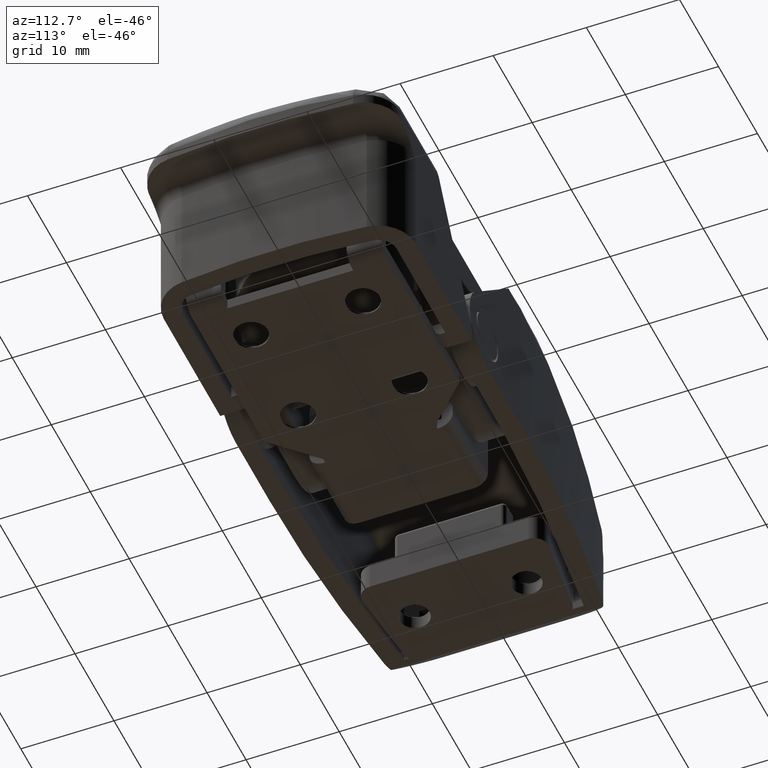
[diagram: clean part render]
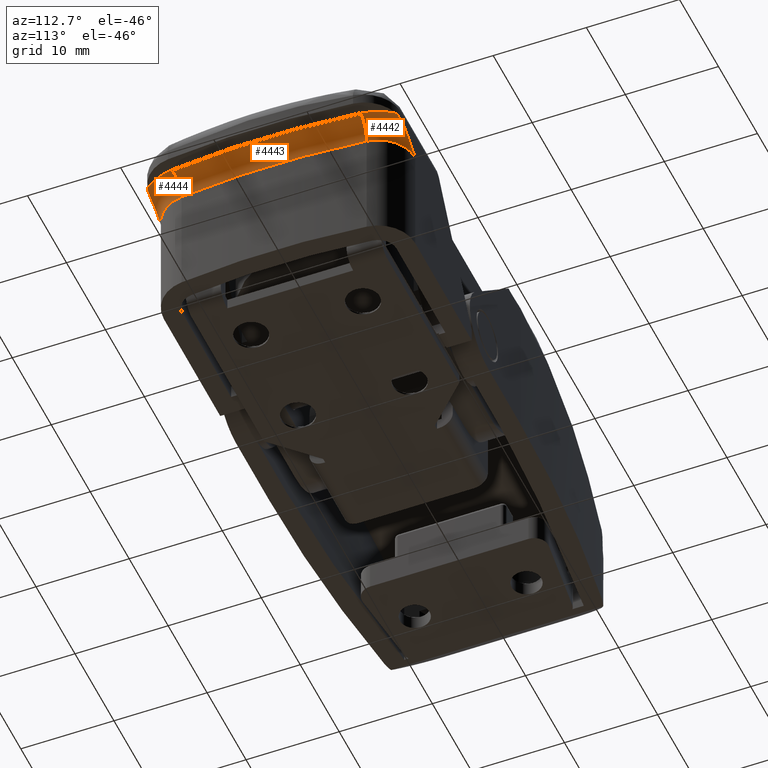
[diagram: same view with one multi-face feature highlighted, each face labeled with its STEP entity id]
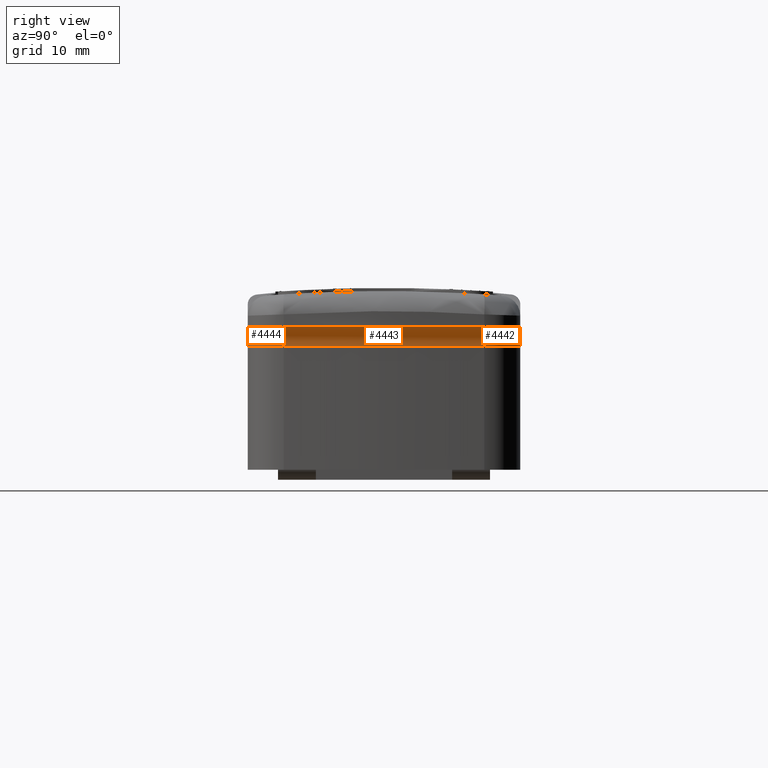
[diagram: same view with one multi-face feature highlighted, each face labeled with its STEP entity id]
A machine part, auxiliary view. The highlighted faces form ONE feature: a constant-radius fillet chain: 3 tangent blend faces with common blend radius 2 mm. The faces share edges in the B-rep.
A second angle (right view) of the same feature is appended — it is thin or edge-on in the first view.
Their STEP definitions:
[1] entity #4442 (Torus):
#41=TOROIDAL_SURFACE('',#4867,6.,2.);
#151=B_SPLINE_CURVE_WITH_KNOTS('',3,(#9120,#9121,#9122,#9123,#9124,#9125),
 .UNSPECIFIED.,.F.,.F.,(4,2,4),(-2.68283121220052,-2.67275873841472,-2.56099642633707),
 .UNSPECIFIED.);
#152=B_SPLINE_CURVE_WITH_KNOTS('',3,(#9132,#9133,#9134,#9135,#9136,#9137,
#9138,#9139),.UNSPECIFIED.,.F.,.F.,(4,2,2,4),(0.,0.145688728850532,0.291377457701063,
0.376116386446212),.UNSPECIFIED.);
#631=FACE_OUTER_BOUND('',#948,.T.);
#948=EDGE_LOOP('',(#4002,#4003,#4004,#4005,#4006));
#1812=CIRCLE('',#4868,6.);
#1813=CIRCLE('',#4869,2.);
#1814=CIRCLE('',#4870,4.);
#2224=VERTEX_POINT('',#9118);
#2225=VERTEX_POINT('',#9119);
#2226=VERTEX_POINT('',#9126);
#2227=VERTEX_POINT('',#9128);
#2228=VERTEX_POINT('',#9130);
#2830=EDGE_CURVE('',#2224,#2225,#151,.T.);
#2831=EDGE_CURVE('',#2225,#2226,#1812,.T.);
#2832=EDGE_CURVE('',#2226,#2227,#1813,.T.);
#2833=EDGE_CURVE('',#2227,#2228,#1814,.T.);
#2834=EDGE_CURVE('',#2228,#2224,#152,.T.);
#4002=ORIENTED_EDGE('',*,*,#2830,.T.);
#4003=ORIENTED_EDGE('',*,*,#2831,.T.);
#4004=ORIENTED_EDGE('',*,*,#2832,.T.);
#4005=ORIENTED_EDGE('',*,*,#2833,.T.);
#4006=ORIENTED_EDGE('',*,*,#2834,.T.);
#4442=ADVANCED_FACE('',(#631),#41,.F.);
#4867=AXIS2_PLACEMENT_3D('',#9117,#6023,#6024);
#4868=AXIS2_PLACEMENT_3D('',#9127,#6025,#6026);
#4869=AXIS2_PLACEMENT_3D('',#9129,#6027,#6028);
#4870=AXIS2_PLACEMENT_3D('',#9131,#6029,#6030);
#6023=DIRECTION('center_axis',(0.,-1.,0.));
#6024=DIRECTION('ref_axis',(0.,0.,-1.));
#6025=DIRECTION('center_axis',(0.,-1.,0.));
#6026=DIRECTION('ref_axis',(0.667676363297042,0.,-0.744451659877548));
#6027=DIRECTION('center_axis',(0.108416547788872,0.,0.994105553834975));
#6028=DIRECTION('ref_axis',(0.,1.,0.));
#6029=DIRECTION('center_axis',(0.,1.,0.));
#6030=DIRECTION('ref_axis',(0.667676363297042,0.,-0.744451659877548));
#9117=CARTESIAN_POINT('Origin',(9.48349915478972,12.2,-9.50000000000001));
#9118=CARTESIAN_POINT('',(12.9834991556514,14.0790622335553,-13.5));
#9119=CARTESIAN_POINT('',(14.0906420119326,14.2,-13.3437266674255));
#9120=CARTESIAN_POINT('Ctrl Pts',(12.9834991556748,14.0790622334575,-13.5));
#9121=CARTESIAN_POINT('Ctrl Pts',(13.0123673442107,14.0859914085057,-13.4999999999936));
#9122=CARTESIAN_POINT('Ctrl Pts',(13.0414894039609,14.0926175549214,-13.4996875011476));
#9123=CARTESIAN_POINT('Ctrl Pts',(13.3967367780169,14.1691217820721,-13.491927074777));
#9124=CARTESIAN_POINT('Ctrl Pts',(13.7413179631012,14.2,-13.4443455872799));
#9125=CARTESIAN_POINT('Ctrl Pts',(14.0906420119326,14.2,-13.3437266674255));
#9126=CARTESIAN_POINT('',(15.4481324777996,14.2,-10.1504992867332));
#9127=CARTESIAN_POINT('Origin',(9.48349915478972,14.2,-9.50000000000001));
#9128=CARTESIAN_POINT('',(13.4599213701296,12.2,-9.9336661911555));
#9129=CARTESIAN_POINT('Origin',(15.4481324777996,12.2,-10.1504992867332));
#9130=CARTESIAN_POINT('',(9.48349915478972,12.2,-13.5));
#9131=CARTESIAN_POINT('Origin',(9.48349915478972,12.2,-9.50000000000001));
#9132=CARTESIAN_POINT('Ctrl Pts',(9.48349915478972,12.2,-13.5));
#9133=CARTESIAN_POINT('Ctrl Pts',(9.88001365141027,12.4803780893992,-13.5));
#9134=CARTESIAN_POINT('Ctrl Pts',(10.315794949848,12.7896310984424,-13.5));
#9135=CARTESIAN_POINT('Ctrl Pts',(11.216344817972,13.3563781472339,-13.5));
#9136=CARTESIAN_POINT('Ctrl Pts',(11.6827437642741,13.6112774082342,-13.5));
#9137=CARTESIAN_POINT('Ctrl Pts',(12.3920090467758,13.9060796715006,-13.5));
#9138=CARTESIAN_POINT('Ctrl Pts',(12.6841061528305,14.0071995142966,-13.5));
#9139=CARTESIAN_POINT('Ctrl Pts',(12.9834991556748,14.0790622334575,-13.5));
[2] entity #4443 (Torus):
#42=TOROIDAL_SURFACE('',#4871,93.6249999999999,2.);
#632=FACE_OUTER_BOUND('',#949,.T.);
#949=EDGE_LOOP('',(#4007,#4008,#4009,#4010));
#1813=CIRCLE('',#4869,2.);
#1815=CIRCLE('',#4872,2.00000000000001);
#1816=CIRCLE('',#4873,91.6249999999999);
#1817=CIRCLE('',#4874,93.6249999999999);
#2226=VERTEX_POINT('',#9126);
#2227=VERTEX_POINT('',#9128);
#2229=VERTEX_POINT('',#9141);
#2230=VERTEX_POINT('',#9142);
#2832=EDGE_CURVE('',#2226,#2227,#1813,.T.);
#2835=EDGE_CURVE('',#2229,#2230,#1815,.T.);
#2836=EDGE_CURVE('',#2230,#2227,#1816,.T.);
#2837=EDGE_CURVE('',#2226,#2229,#1817,.T.);
#4007=ORIENTED_EDGE('',*,*,#2835,.T.);
#4008=ORIENTED_EDGE('',*,*,#2836,.T.);
#4009=ORIENTED_EDGE('',*,*,#2832,.F.);
#4010=ORIENTED_EDGE('',*,*,#2837,.T.);
#4443=ADVANCED_FACE('',(#632),#42,.F.);
#4869=AXIS2_PLACEMENT_3D('',#9129,#6027,#6028);
#4871=AXIS2_PLACEMENT_3D('',#9140,#6031,#6032);
#4872=AXIS2_PLACEMENT_3D('',#9143,#6033,#6034);
#4873=AXIS2_PLACEMENT_3D('',#9144,#6035,#6036);
#4874=AXIS2_PLACEMENT_3D('',#9145,#6037,#6038);
#6027=DIRECTION('center_axis',(0.108416547788872,0.,0.994105553834975));
#6028=DIRECTION('ref_axis',(0.,1.,0.));
#6031=DIRECTION('center_axis',(0.,-1.,0.));
#6032=DIRECTION('ref_axis',(0.,0.,-1.));
#6033=DIRECTION('center_axis',(-0.108416547788873,0.,0.994105553834975));
#6034=DIRECTION('ref_axis',(0.,1.,0.));
#6035=DIRECTION('center_axis',(0.,1.,0.));
#6036=DIRECTION('ref_axis',(1.,0.,-9.69362531732743E-17));
#6037=DIRECTION('center_axis',(0.,-1.,0.));
#6038=DIRECTION('ref_axis',(1.,0.,-9.69362531732743E-17));
#9126=CARTESIAN_POINT('',(15.4481324777996,14.2,-10.1504992867332));
#9128=CARTESIAN_POINT('',(13.4599213701296,12.2,-9.9336661911555));
#9129=CARTESIAN_POINT('Origin',(15.4481324777996,12.2,-10.1504992867332));
#9140=CARTESIAN_POINT('Origin',(-77.6249999999999,12.2,0.));
#9141=CARTESIAN_POINT('',(15.4481324777996,14.2,10.1504992867332));
#9142=CARTESIAN_POINT('',(13.4599213701296,12.2,9.93366619115548));
#9143=CARTESIAN_POINT('Origin',(15.4481324777996,12.2,10.1504992867332));
#9144=CARTESIAN_POINT('Origin',(-77.6249999999999,12.2,0.));
#9145=CARTESIAN_POINT('Origin',(-77.6249999999999,14.2,0.));
[3] entity #4444 (Torus):
#43=TOROIDAL_SURFACE('',#4875,6.,2.);
#153=B_SPLINE_CURVE_WITH_KNOTS('',3,(#9149,#9150,#9151,#9152,#9153,#9154,
#9155,#9156),.UNSPECIFIED.,.F.,.F.,(4,2,2,4),(-0.376116386554073,-0.291377457701062,
-0.145688728850531,0.),.UNSPECIFIED.);
#154=B_SPLINE_CURVE_WITH_KNOTS('',3,(#9160,#9161,#9162,#9163,#9164,#9165),
 .UNSPECIFIED.,.F.,.F.,(4,2,4),(-1.51174105798211,-1.43038898737524,-1.38711546420473),
 .UNSPECIFIED.);
#633=FACE_OUTER_BOUND('',#950,.T.);
#950=EDGE_LOOP('',(#4011,#4012,#4013,#4014,#4015));
#1815=CIRCLE('',#4872,2.00000000000001);
#1818=CIRCLE('',#4876,4.);
#1819=CIRCLE('',#4877,6.);
#2229=VERTEX_POINT('',#9141);
#2230=VERTEX_POINT('',#9142);
#2231=VERTEX_POINT('',#9147);
#2232=VERTEX_POINT('',#9148);
#2233=VERTEX_POINT('',#9158);
#2835=EDGE_CURVE('',#2229,#2230,#1815,.T.);
#2838=EDGE_CURVE('',#2231,#2232,#153,.F.);
#2839=EDGE_CURVE('',#2231,#2230,#1818,.T.);
#2840=EDGE_CURVE('',#2229,#2233,#1819,.T.);
#2841=EDGE_CURVE('',#2232,#2233,#154,.F.);
#4011=ORIENTED_EDGE('',*,*,#2838,.F.);
#4012=ORIENTED_EDGE('',*,*,#2839,.T.);
#4013=ORIENTED_EDGE('',*,*,#2835,.F.);
#4014=ORIENTED_EDGE('',*,*,#2840,.T.);
#4015=ORIENTED_EDGE('',*,*,#2841,.F.);
#4444=ADVANCED_FACE('',(#633),#43,.F.);
#4872=AXIS2_PLACEMENT_3D('',#9143,#6033,#6034);
#4875=AXIS2_PLACEMENT_3D('',#9146,#6039,#6040);
#4876=AXIS2_PLACEMENT_3D('',#9157,#6041,#6042);
#4877=AXIS2_PLACEMENT_3D('',#9159,#6043,#6044);
#6033=DIRECTION('center_axis',(-0.108416547788873,0.,0.994105553834975));
#6034=DIRECTION('ref_axis',(0.,1.,0.));
#6039=DIRECTION('center_axis',(0.,-1.,0.));
#6040=DIRECTION('ref_axis',(0.,0.,-1.));
#6041=DIRECTION('center_axis',(0.,1.,0.));
#6042=DIRECTION('ref_axis',(0.667676363297042,0.,0.744451659877548));
#6043=DIRECTION('center_axis',(0.,-1.,0.));
#6044=DIRECTION('ref_axis',(0.667676363297042,0.,0.744451659877548));
#9141=CARTESIAN_POINT('',(15.4481324777996,14.2,10.1504992867332));
#9142=CARTESIAN_POINT('',(13.4599213701296,12.2,9.93366619115548));
#9143=CARTESIAN_POINT('Origin',(15.4481324777996,12.2,10.1504992867332));
#9146=CARTESIAN_POINT('Origin',(9.48349915478974,12.2,9.49999999999999));
#9147=CARTESIAN_POINT('',(9.48349915478974,12.2,13.5));
#9148=CARTESIAN_POINT('',(12.9834991567238,14.079062234125,13.5));
#9149=CARTESIAN_POINT('Ctrl Pts',(12.9834991568181,14.0790622337319,13.5));
#9150=CARTESIAN_POINT('Ctrl Pts',(12.6841061535747,14.0071995145514,13.5));
#9151=CARTESIAN_POINT('Ctrl Pts',(12.3920090471078,13.9060796716386,13.5));
#9152=CARTESIAN_POINT('Ctrl Pts',(11.6827437642741,13.6112774082342,13.5));
#9153=CARTESIAN_POINT('Ctrl Pts',(11.216344817972,13.3563781472339,13.5));
#9154=CARTESIAN_POINT('Ctrl Pts',(10.315794949848,12.7896310984424,13.5));
#9155=CARTESIAN_POINT('Ctrl Pts',(9.88001365141029,12.4803780893992,13.5));
#9156=CARTESIAN_POINT('Ctrl Pts',(9.48349915478974,12.2,13.5));
#9157=CARTESIAN_POINT('Origin',(9.48349915478974,12.2,9.49999999999999));
#9158=CARTESIAN_POINT('',(14.0906420119326,14.2,13.3437266674255));
#9159=CARTESIAN_POINT('Origin',(9.48349915478974,14.2,9.49999999999999));
#9160=CARTESIAN_POINT('Ctrl Pts',(14.0906420119326,14.2,13.3437266674255));
#9161=CARTESIAN_POINT('Ctrl Pts',(13.8432843919451,14.2,13.4149752877943));
#9162=CARTESIAN_POINT('Ctrl Pts',(13.5967641514301,14.1844614633472,13.4600791030841));
#9163=CARTESIAN_POINT('Ctrl Pts',(13.2284194231022,14.1315166689472,13.4945607698975));
#9164=CARTESIAN_POINT('Ctrl Pts',(13.1039589631351,14.1079759663012,13.4999999999389));
#9165=CARTESIAN_POINT('Ctrl Pts',(12.9834991568181,14.0790622337319,13.5));